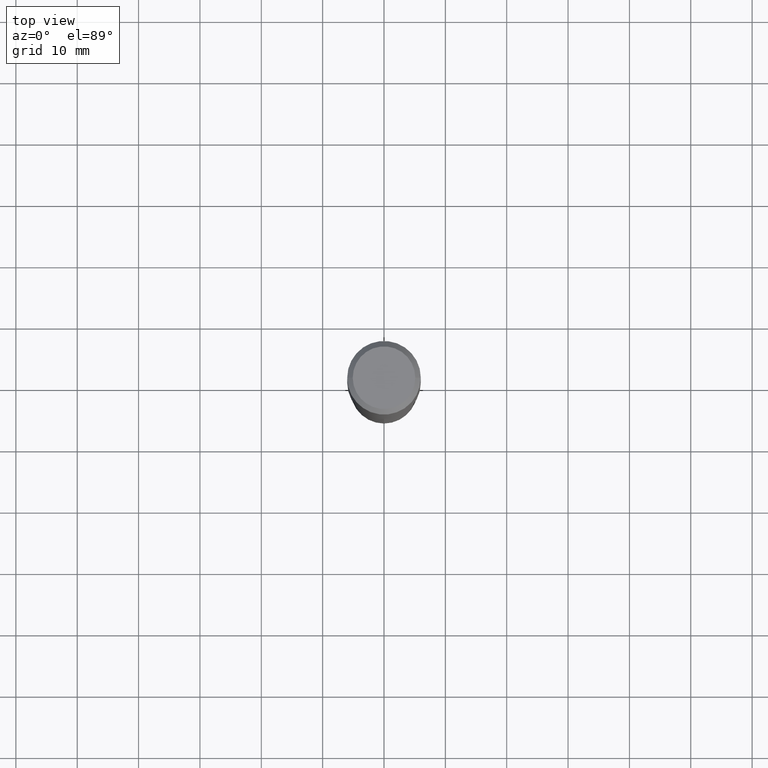
[diagram: clean part render]
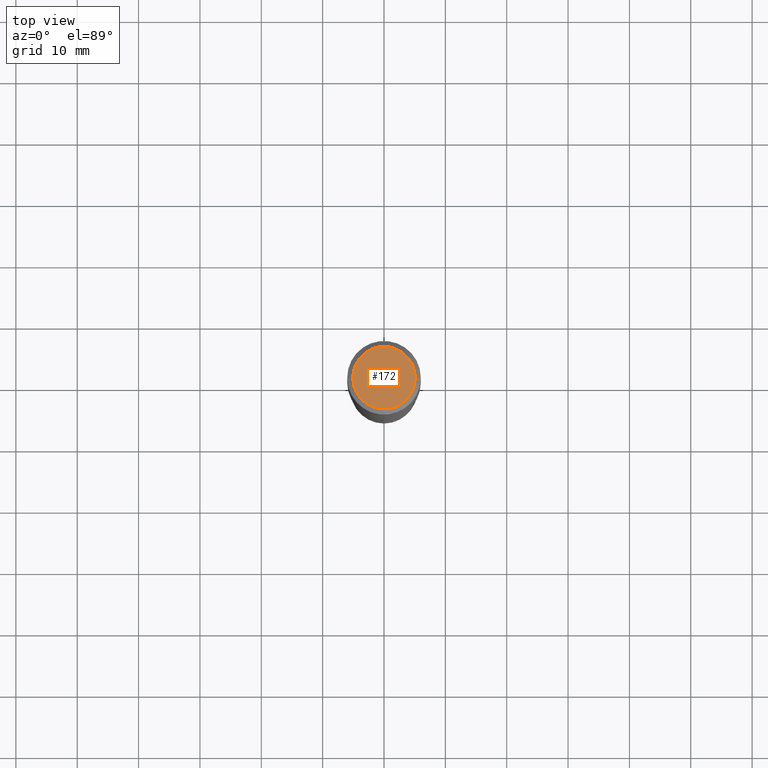
[diagram: same view with one face highlighted and labeled with its STEP entity id]
A machine part, top view. The second image highlights one B-rep face of the part: STEP entity #172.
In plain terms, the highlighted planar face has unit normal (0, -0, -1).
Its self-contained STEP definition (entity closure, byte-faithful):
#18 = EDGE_CURVE ( 'NONE', #384, #243, #275, .T. ) ;
#20 = ORIENTED_EDGE ( 'NONE', *, *, #250, .T. ) ;
#42 = AXIS2_PLACEMENT_3D ( 'NONE', #177, #287, #179 ) ;
#60 = AXIS2_PLACEMENT_3D ( 'NONE', #356, #315, #463 ) ;
#67 = PLANE ( 'NONE',  #343 ) ;
#135 = CARTESIAN_POINT ( 'NONE',  ( -0.2007700000000000040, 1.463821008716677338E-15, 4.096137381438094301E-18 ) ) ;
#139 = DIRECTION ( 'NONE',  ( 2.438088387897960049E-29, -3.491481338843145188E-15, -1.000000000000000000 ) ) ;
#172 = ADVANCED_FACE ( 'NONE', ( #403 ), #67, .F. ) ;
#177 = CARTESIAN_POINT ( 'NONE',  ( -1.001697619218023151E-46, 1.430158722866391908E-32, 4.096137381448114529E-18 ) ) ;
#179 = DIRECTION ( 'NONE',  ( 1.000000000000000000, -6.982962677686266711E-15, 4.876140833081945105E-29 ) ) ;
#216 = DIRECTION ( 'NONE',  ( -1.000000000000000000, 6.982962677686265922E-15, -4.876176775795935793E-29 ) ) ;
#243 = VERTEX_POINT ( 'NONE', #135 ) ;
#250 = EDGE_CURVE ( 'NONE', #243, #384, #408, .T. ) ;
#262 = CARTESIAN_POINT ( 'NONE',  ( 0.2007700000000000040, -1.560767496960719672E-15, 4.096137381458473721E-18 ) ) ;
#275 = CIRCLE ( 'NONE', #60, 0.2007700000000000040 ) ;
#287 = DIRECTION ( 'NONE',  ( -2.445468806185136597E-29, 3.491481338843145583E-15, 1.000000000000000000 ) ) ;
#315 = DIRECTION ( 'NONE',  ( -2.445468806185136597E-29, 3.491481338843145583E-15, 1.000000000000000000 ) ) ;
#343 = AXIS2_PLACEMENT_3D ( 'NONE', #469, #139, #216 ) ;
#356 = CARTESIAN_POINT ( 'NONE',  ( -1.001697619218023151E-46, 1.430158722866391908E-32, 4.096137381448114529E-18 ) ) ;
#369 = ORIENTED_EDGE ( 'NONE', *, *, #18, .T. ) ;
#384 = VERTEX_POINT ( 'NONE', #262 ) ;
#403 = FACE_OUTER_BOUND ( 'NONE', #461, .T. ) ;
#408 = CIRCLE ( 'NONE', #42, 0.2007700000000000040 ) ;
#461 = EDGE_LOOP ( 'NONE', ( #20, #369 ) ) ;
#463 = DIRECTION ( 'NONE',  ( 1.000000000000000000, -6.982962677686266711E-15, 4.876140833081945105E-29 ) ) ;
#469 = CARTESIAN_POINT ( 'NONE',  ( -5.008488096090115757E-47, 7.150793614331959538E-33, 2.048068690724057264E-18 ) ) ;